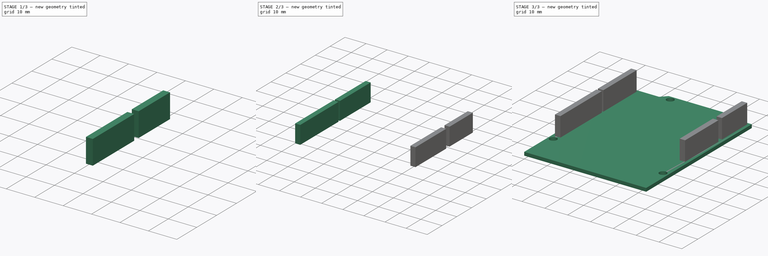
[diagram: build sequence overview — one tinted view per stage of 3, left to right]
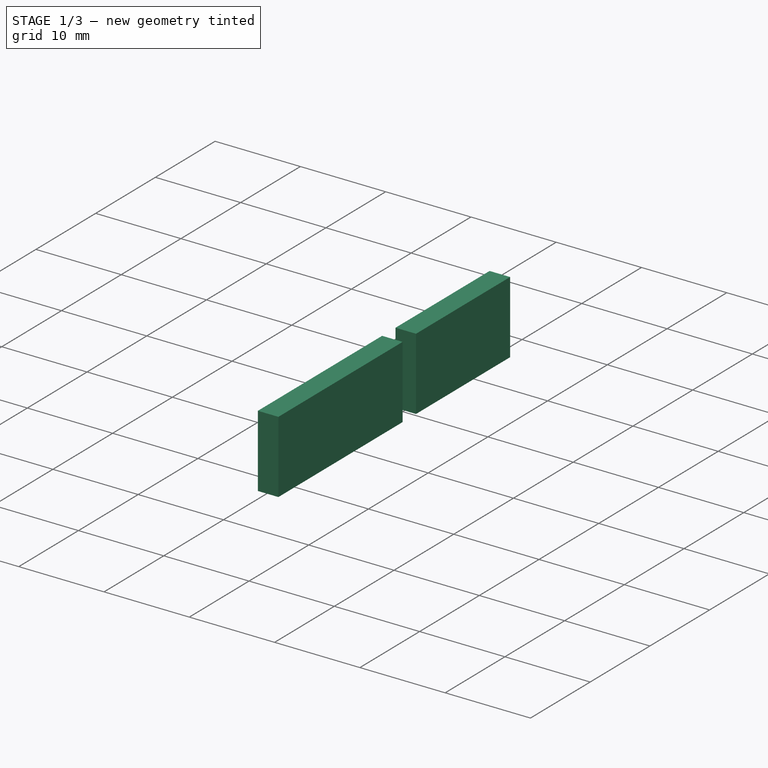
[diagram: stage 1 of 3 — iso view after this stage's code; geometry added in this stage tinted green]
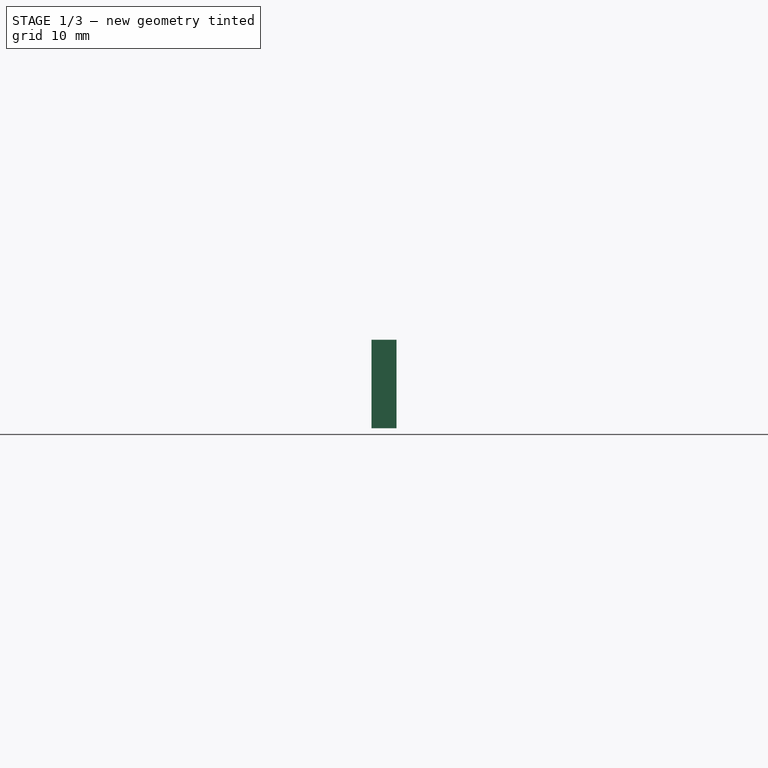
[diagram: stage 1 of 3 — front view after this stage's code; geometry added in this stage tinted green]
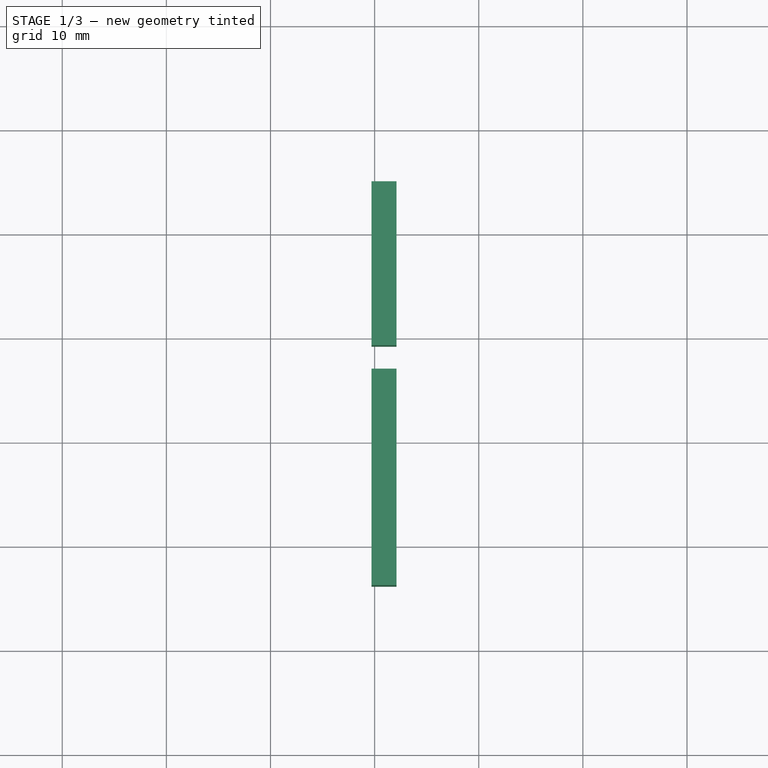
[diagram: stage 1 of 3 — top view after this stage's code; geometry added in this stage tinted green]
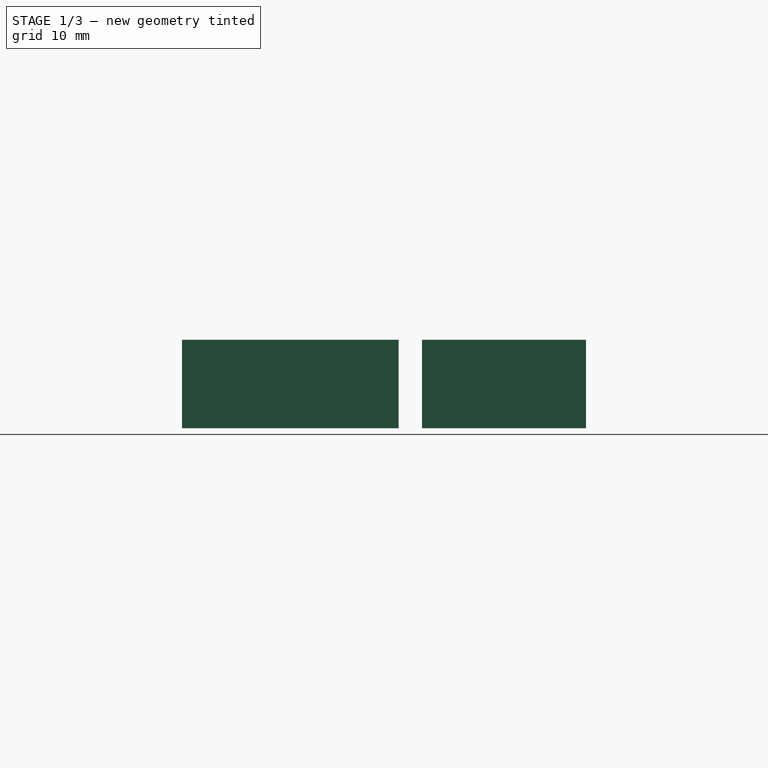
[diagram: stage 1 of 3 — right view after this stage's code; geometry added in this stage tinted green]
FCSTD DOCUMENT  (FreeCAD 0.19R24276 (Git))
Label: Arduino_StandardBoard_wHeaders
License: All rights reserved
LicenseURL: http://en.wikipedia.org/wiki/All_rights_reserved
objects: Sketcher::SketchObject×6, PartDesign::Pad×5, PartDesign::Body×5, PartDesign::Pocket×1, App::Part×1
note: 23 computed .brp shape members not serialized (recipe doc carries the construction recipe); baked Part::Feature solids carry a one-line shape summary decoded from their .brp

FEATURE [PartDesign::Body] Body002  label="Header2_8pin"
  Group = -> [Sketch003,Pad002]
  Origin = -> Origin003
  Tip = -> Pad002
FEATURE [Sketcher::SketchObject] Sketch004
  FullyConstrained = true
  MapMode = 5
  Support = -> [XY_Plane004]
  sketch-geometry (4):
    g0: LineSegment StartX=49.7 StartY=47 StartZ=0 EndX=52.1 EndY=47 EndZ=0
    g1: LineSegment StartX=52.1 StartY=47 StartZ=0 EndX=52.1 EndY=26.2 EndZ=0
    g2: LineSegment StartX=52.1 StartY=26.2 StartZ=0 EndX=49.7 EndY=26.2 EndZ=0
    g3: LineSegment StartX=49.7 StartY=26.2 StartZ=0 EndX=49.7 EndY=47 EndZ=0
  constraints (12):
    c: Coincident(g0,g1)
    c: Coincident(g1,g2)
    c: Coincident(g2,g3)
    c: Coincident(g3,g0)
    c: Horizontal(g0)
    c: Horizontal(g2)
    c: Vertical(g1)
    c: Vertical(g3)
    c: DistanceX(g0,g0) = 2.4
    c: DistanceX(g-1,g1) = 52.1
    c: DistanceY(g2,g0) = 20.8
    c: DistanceY(g-1,g0) = 47
FEATURE [PartDesign::Pad] Pad003
  Direction = (1,1,1)
  Length = 8.5
  Length2 = 100
  Profile = -> Sketch004
  Type = 0
FEATURE [PartDesign::Body] Body003  label="Header3_8pin"
  Group = -> [Sketch004,Pad003]
  Origin = -> Origin004
  Tip = -> Pad003
FEATURE [Sketcher::SketchObject] Sketch005
  FullyConstrained = true
  MapMode = 5
  Support = -> [XY_Plane005]
  sketch-geometry (4):
    g0: LineSegment StartX=49.7 StartY=65 StartZ=0 EndX=52.1 EndY=65 EndZ=0
    g1: LineSegment StartX=52.1 StartY=65 StartZ=0 EndX=52.1 EndY=49.25 EndZ=0
    g2: LineSegment StartX=52.1 StartY=49.25 StartZ=0 EndX=49.7 EndY=49.25 EndZ=0
    g3: LineSegment StartX=49.7 StartY=49.25 StartZ=0 EndX=49.7 EndY=65 EndZ=0
  constraints (12):
    c: Coincident(g0,g1)
    c: Coincident(g1,g2)
    c: Coincident(g2,g3)
    c: Coincident(g3,g0)
    c: Horizontal(g0)
    c: Horizontal(g2)
    c: Vertical(g1)
    c: Vertical(g3)
    c: DistanceX(g0,g0) = 2.4
    c: DistanceX(g-1,g1) = 52.1
    c: DistanceY(g-1,g0) = 65
    c: DistanceY(g1,g0) = 15.75
FEATURE [PartDesign::Pad] Pad004
  Direction = (1,1,1)
  Length = 8.5
  Length2 = 100
  Profile = -> Sketch005
  Type = 0
FEATURE [PartDesign::Body] Body004  label="Header4_6pin"
  Group = -> [Sketch005,Pad004]
  Origin = -> Origin005
  Tip = -> Pad004
FEATURE [App::Part] Part  label="StandardBoard"
  Group = -> [Body,Body001,Body002,Body003,Body004]
  Origin = -> Origin
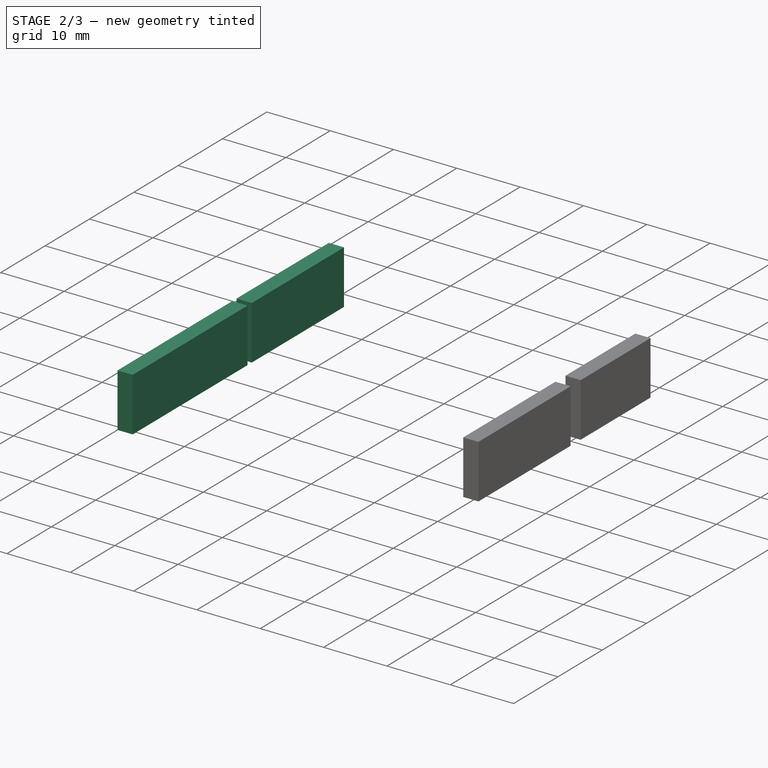
[diagram: stage 2 of 3 — iso view after this stage's code; geometry added in this stage tinted green]
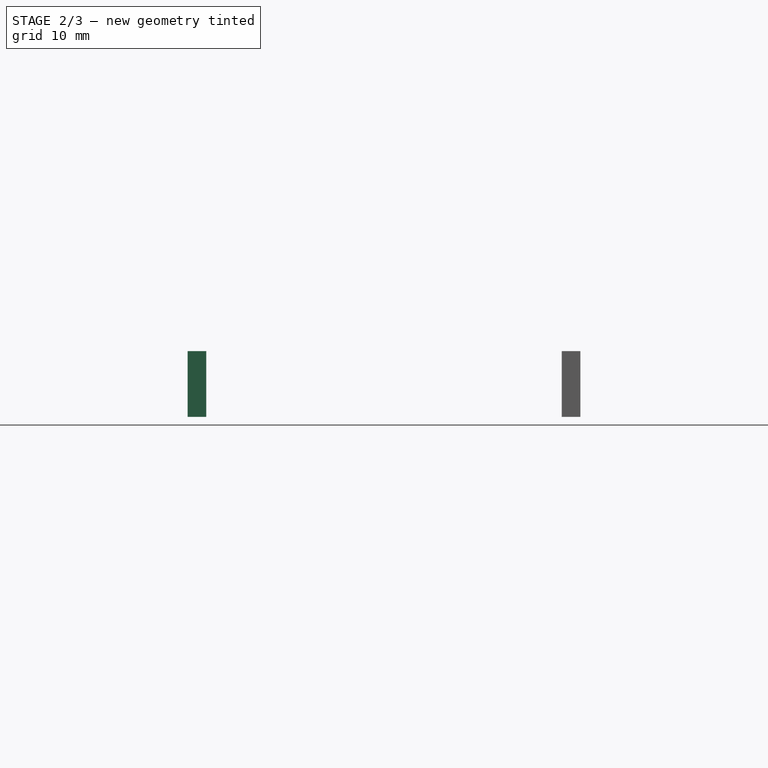
[diagram: stage 2 of 3 — front view after this stage's code; geometry added in this stage tinted green]
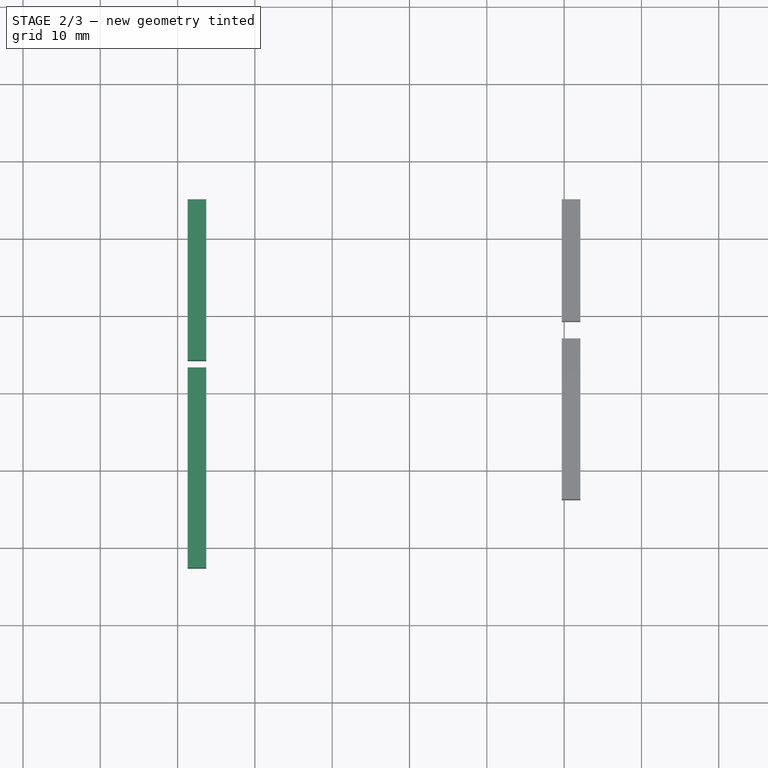
[diagram: stage 2 of 3 — top view after this stage's code; geometry added in this stage tinted green]
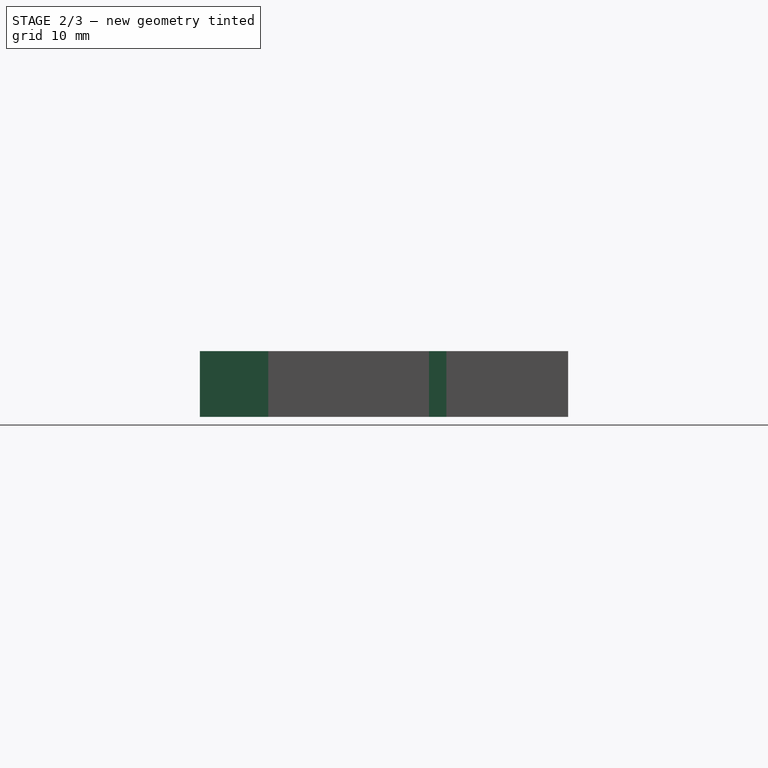
[diagram: stage 2 of 3 — right view after this stage's code; geometry added in this stage tinted green]
FEATURE [PartDesign::Body] Body  label="MainBoard"
  Group = -> [Sketch,Pad,Sketch001,Pocket]
  Origin = -> Origin001
  Tip = -> Pocket
FEATURE [Sketcher::SketchObject] Sketch002
  FullyConstrained = true
  MapMode = 5
  Support = -> [XY_Plane002]
  sketch-geometry (4):
    g0: LineSegment StartX=1.3 StartY=43.25 StartZ=0 EndX=3.7 EndY=43.25 EndZ=0
    g1: LineSegment StartX=3.7 StartY=43.25 StartZ=0 EndX=3.7 EndY=17.35 EndZ=0
    g2: LineSegment StartX=3.7 StartY=17.35 StartZ=0 EndX=1.3 EndY=17.35 EndZ=0
    g3: LineSegment StartX=1.3 StartY=17.35 StartZ=0 EndX=1.3 EndY=43.25 EndZ=0
  constraints (12):
    c: Coincident(g0,g1)
    c: Coincident(g1,g2)
    c: Coincident(g2,g3)
    c: Coincident(g3,g0)
    c: Horizontal(g0)
    c: Horizontal(g2)
    c: Vertical(g1)
    c: Vertical(g3)
    c: DistanceX(g0,g0) = 2.4
    c: DistanceY(g2,g0) = 25.9
    c: DistanceX(g-1,g2) = 1.3
    c: DistanceY(g-1,g0) = 43.25
FEATURE [PartDesign::Pad] Pad001
  Direction = (1,1,1)
  Length = 8.5
  Length2 = 100
  Profile = -> Sketch002
  Type = 0
FEATURE [PartDesign::Body] Body001  label="Header1_10pin"
  Group = -> [Sketch002,Pad001]
  Origin = -> Origin002
  Tip = -> Pad001
FEATURE [Sketcher::SketchObject] Sketch003
  FullyConstrained = true
  MapMode = 5
  Support = -> [XY_Plane003]
  sketch-geometry (4):
    g0: LineSegment StartX=1.3 StartY=65 StartZ=0 EndX=3.7 EndY=65 EndZ=0
    g1: LineSegment StartX=3.7 StartY=65 StartZ=0 EndX=3.7 EndY=44.2 EndZ=0
    g2: LineSegment StartX=3.7 StartY=44.2 StartZ=0 EndX=1.3 EndY=44.2 EndZ=0
    g3: LineSegment StartX=1.3 StartY=44.2 StartZ=0 EndX=1.3 EndY=65 EndZ=0
  constraints (12):
    c: Coincident(g0,g1)
    c: Coincident(g1,g2)
    c: Coincident(g2,g3)
    c: Coincident(g3,g0)
    c: Horizontal(g0)
    c: Horizontal(g2)
    c: Vertical(g1)
    c: Vertical(g3)
    c: DistanceX(g0,g0) = 2.4
    c: DistanceX(g-1,g2) = 1.3
    c: DistanceY(g-1,g0) = 65
    c: DistanceY(g2,g0) = 20.8
FEATURE [PartDesign::Pad] Pad002
  Direction = (1,1,1)
  Length = 8.5
  Length2 = 100
  Profile = -> Sketch003
  Type = 0
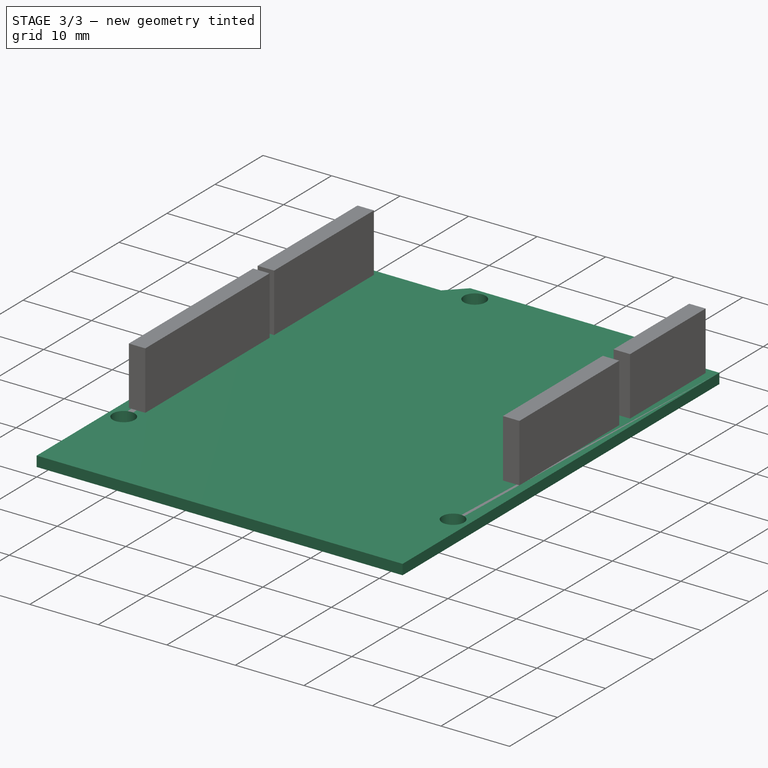
[diagram: stage 3 of 3 — iso view after this stage's code; geometry added in this stage tinted green]
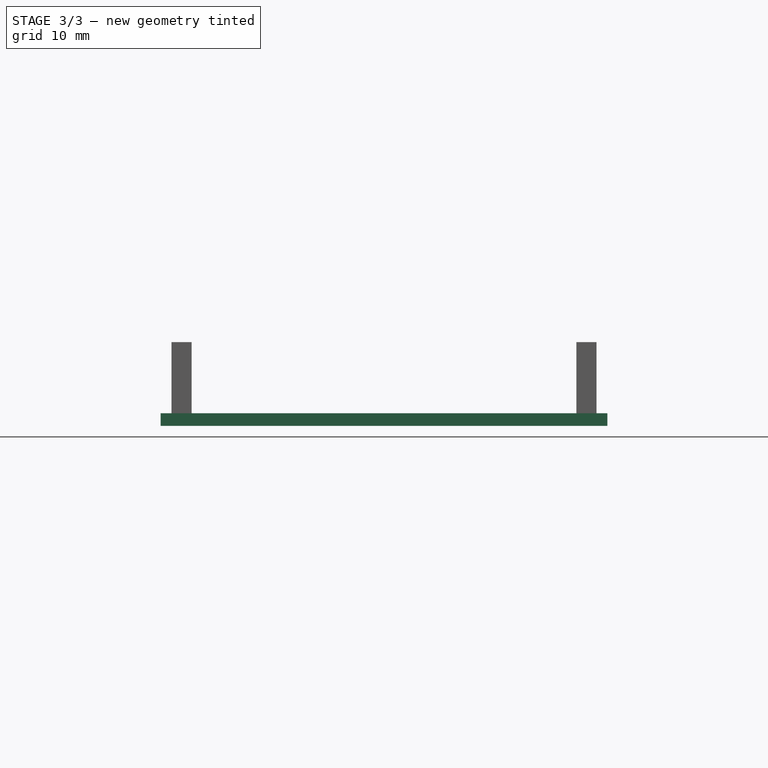
[diagram: stage 3 of 3 — front view after this stage's code; geometry added in this stage tinted green]
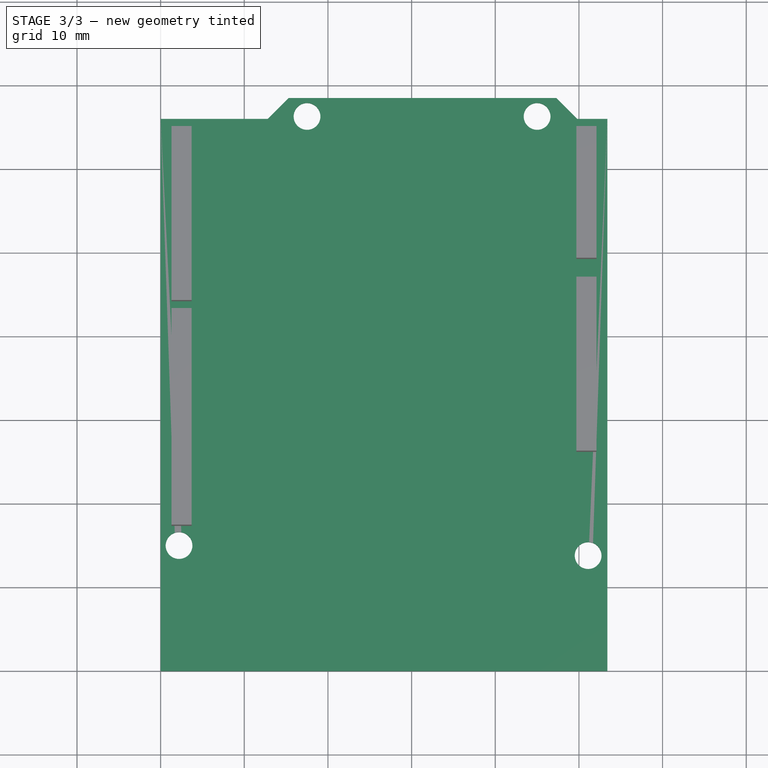
[diagram: stage 3 of 3 — top view after this stage's code; geometry added in this stage tinted green]
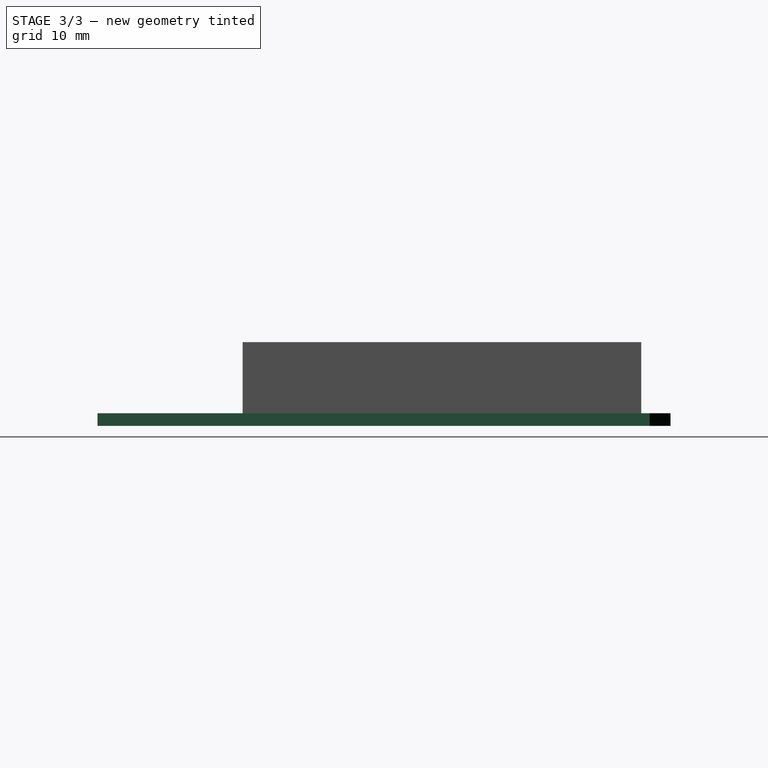
[diagram: stage 3 of 3 — right view after this stage's code; geometry added in this stage tinted green]
FEATURE [Sketcher::SketchObject] Sketch
  FullyConstrained = true
  MapMode = 5
  Support = -> [XY_Plane001]
  sketch-geometry (8):
    g0: LineSegment StartX=-7e-16 StartY=0 StartZ=0 EndX=53.4 EndY=0 EndZ=0
    g1: LineSegment StartX=53.4 StartY=0 StartZ=0 EndX=53.4 EndY=66 EndZ=0
    g2: LineSegment StartX=-7e-16 StartY=66 StartZ=0 EndX=-7e-16 EndY=0 EndZ=0
    g3: LineSegment StartX=12.8 StartY=66 StartZ=0 EndX=15.3 EndY=68.5 EndZ=0
    g4: LineSegment StartX=15.3 StartY=68.5 StartZ=0 EndX=47.3 EndY=68.5 EndZ=0
    g5: LineSegment StartX=47.3 StartY=68.5 StartZ=0 EndX=49.8 EndY=66 EndZ=0
    g6: LineSegment StartX=-7e-16 StartY=66 StartZ=0 EndX=12.8 EndY=66 EndZ=0
    g7: LineSegment StartX=49.8 StartY=66 StartZ=0 EndX=53.4 EndY=66 EndZ=0
  constraints (23):
    c: Coincident(g0,g1)
    c: Coincident(g2,g0)
    c: Horizontal(g0)
    c: Vertical(g1)
    c: Vertical(g2)
    c: Coincident(g0,g-1)
    c: Coincident(g4,g3)
    c: Horizontal(g4)
    c: Coincident(g5,g4)
    c: Coincident(g6,g2)
    c: Coincident(g6,g3)
    c: Horizontal(g6)
    c: Coincident(g7,g5)
    c: Coincident(g7,g1)
    c: Horizontal(g7)
    c: Equal(g3,g5)
    c: Angle(g3,g6) = 2.35619
    c: Angle(g7,g5) = 2.35619
    c: DistanceX(g0,g0) = 53.4
    c: DistanceY(g0,g2) = 66
    c: DistanceY(g0,g3) = 68.5
    c: DistanceX(g2,g3) = 15.3
    c: Distance(g4) = 32
FEATURE [PartDesign::Pad] Pad
  Direction = (1,1,1)
  Length = 1.5
  Length2 = 100
  Profile = -> Sketch
  Reversed = true
  Type = 0
FEATURE [Sketcher::SketchObject] Sketch001
  FullyConstrained = true
  MapMode = 5
  Support = -> [XY_Plane001]
  sketch-geometry (5):
    g0: Circle CenterX=2.2 CenterY=15 CenterZ=0 NormalX=0 NormalY=0 NormalZ=1 AngleXU=0 Radius=1.6
    g1: Circle CenterX=51.1 CenterY=13.8 CenterZ=0 NormalX=0 NormalY=0 NormalZ=1 AngleXU=0 Radius=1.6
    g2: Circle CenterX=17.5 CenterY=66.3 CenterZ=0 NormalX=0 NormalY=0 NormalZ=1 AngleXU=0 Radius=1.6
    g3: Circle CenterX=45 CenterY=66.3 CenterZ=0 NormalX=0 NormalY=0 NormalZ=1 AngleXU=0 Radius=1.6
    g4: LineSegment StartX=17.5 StartY=66.3 StartZ=0 EndX=45 EndY=66.3 EndZ=0
  constraints (14):
    c: DistanceY(g-1,g0) = 15
    c: DistanceX(g-1,g0) = 2.2
    c: Equal(g0,g1)
    c: Equal(g2,g3)
    c: Equal(g3,g1)
    c: Diameter(g0) = 3.2
    c: DistanceX(g-1,g1) = 51.1
    c: DistanceY(g-1,g1) = 13.8
    c: DistanceY(g-1,g2) = 66.3
    c: Coincident(g4,g2)
    c: Coincident(g4,g3)
    c: Horizontal(g4)
    c: DistanceX(g-1,g2) = 17.5
    c: DistanceX(g2,g3) = 27.5
FEATURE [PartDesign::Pocket] Pocket
  BaseFeature = -> Pad
  Length = 5
  Length2 = 100
  Profile = -> Sketch001
  Type = 1
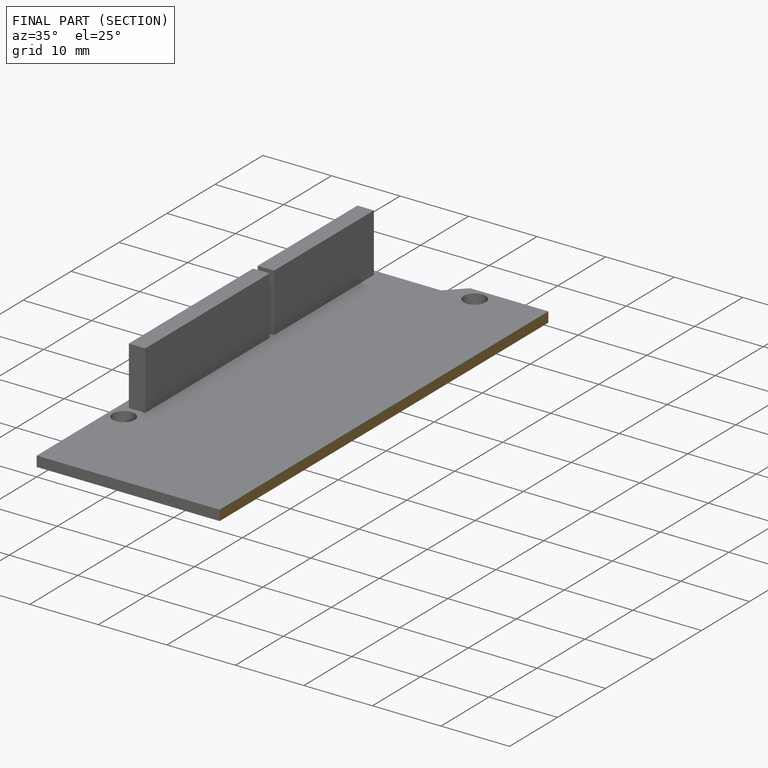
[diagram: finished part — half-section view (interior)]
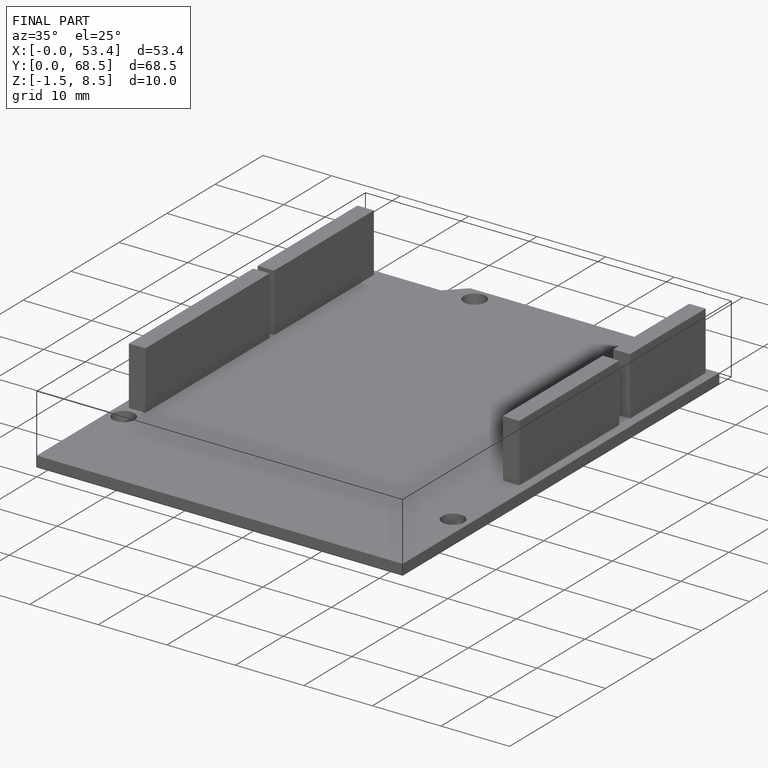
[diagram: finished part — iso view with bounding-box wireframe]
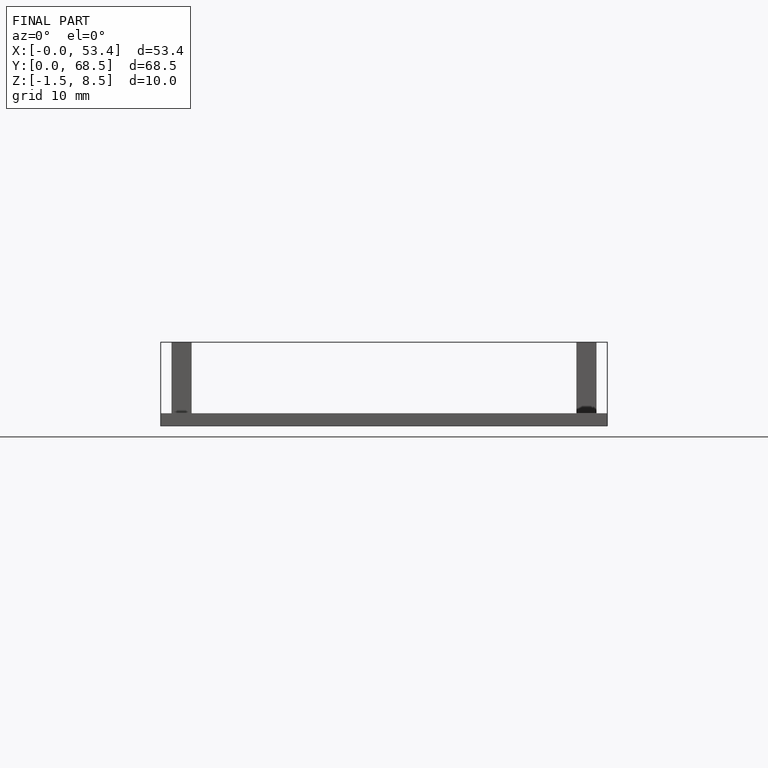
[diagram: finished part — front view with bounding-box wireframe]
